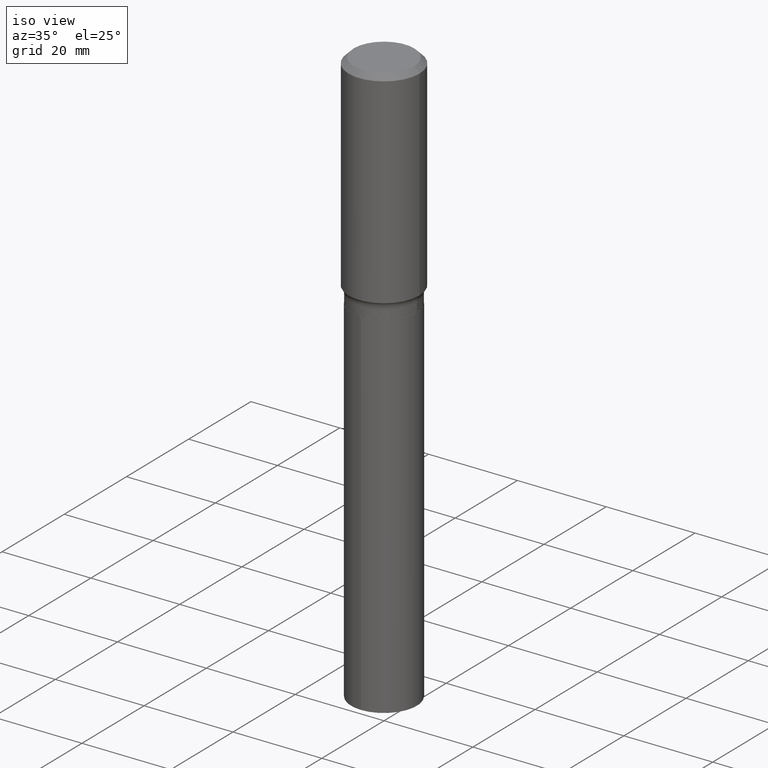
[diagram: clean part render]
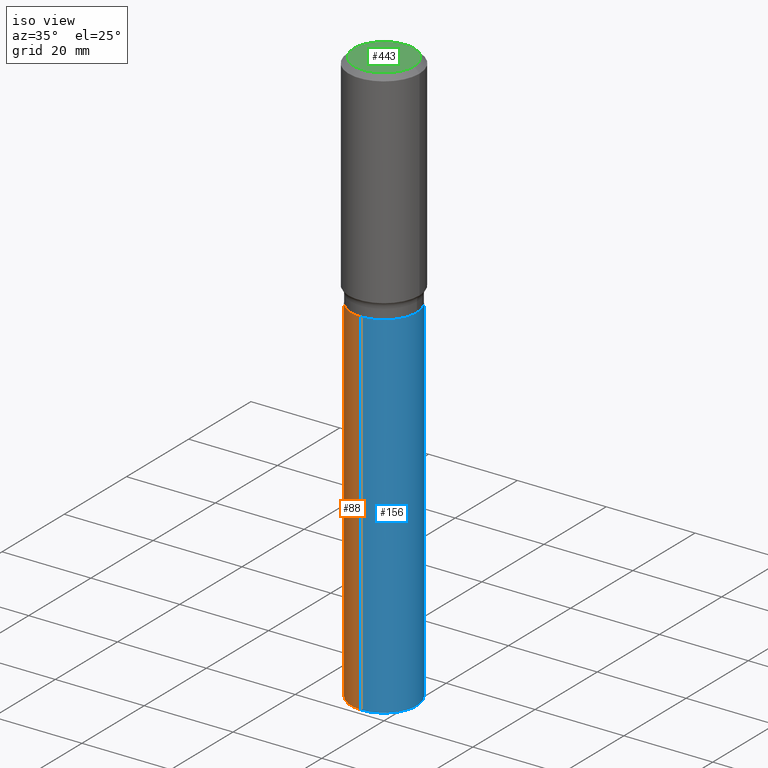
[diagram: same view with three faces highlighted in distinct colors, each labeled with its STEP entity id]
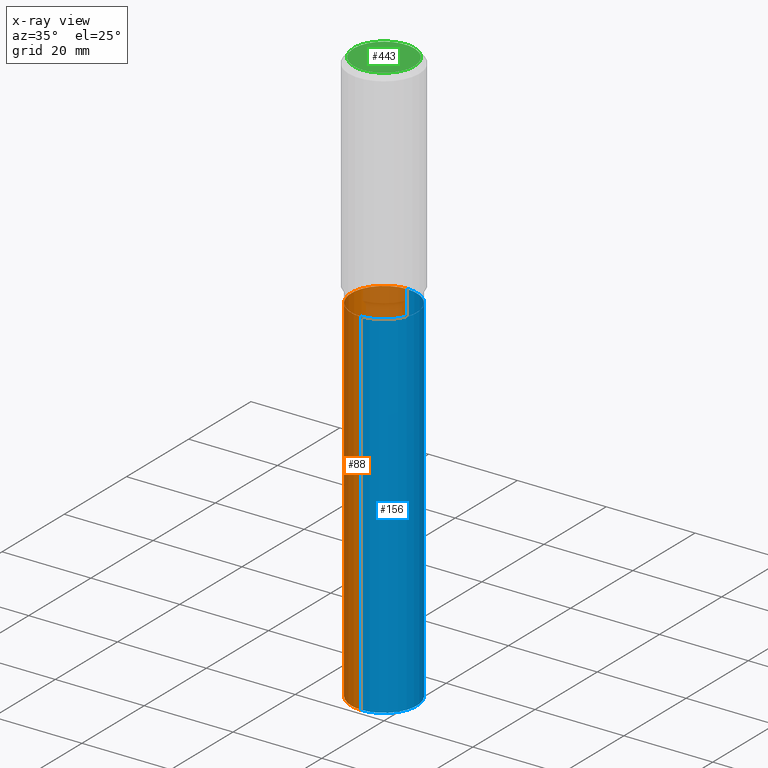
[diagram: x-ray of the same camera — body ghosted, the three highlighted faces saturated]
A machine part, iso view with three faces highlighted in distinct colors.
The next image is the same camera in x-ray (body ghosted, the three faces saturated) — at least one of them is partly hidden behind the body in this view.
Their STEP definitions:

[orange] entity #88 — the highlighted cylindrical surface (partial cylindrical patch) has radius 7.4003 mm, axis along (-0, 0, 1).
#3 = CYLINDRICAL_SURFACE ( 'NONE', #227, 0.2913499999999999979 ) ;
#7 = CARTESIAN_POINT ( 'NONE',  ( 4.813416251214202584E-29, -6.872282719244960739E-15, -1.968299999999999272 ) ) ;
#10 = CARTESIAN_POINT ( 'NONE',  ( 2.070166260637176911E-15, 0.2913499999999821788, -5.118286959102927192 ) ) ;
#22 = DIRECTION ( 'NONE',  ( -6.982962677686267499E-15, -1.000000000000000000, 3.750606478344620614E-15 ) ) ;
#29 = CARTESIAN_POINT ( 'NONE',  ( -2.034486176143845503E-15, -0.2913500000000068257, -1.968299999999998162 ) ) ;
#44 = ORIENTED_EDGE ( 'NONE', *, *, #414, .F. ) ;
#46 = LINE ( 'NONE', #196, #91 ) ;
#60 = AXIS2_PLACEMENT_3D ( 'NONE', #99, #256, #418 ) ;
#84 = DIRECTION ( 'NONE',  ( -2.445337039043801904E-29, 3.491670036889256580E-15, 1.000000000000000000 ) ) ;
#88 = ADVANCED_FACE ( 'NONE', ( #101 ), #3, .T. ) ;
#91 = VECTOR ( 'NONE', #84, 39.37007874015748143 ) ;
#99 = CARTESIAN_POINT ( 'NONE',  ( 1.251619603481354331E-28, -1.787099780093655528E-14, -5.118286959102926303 ) ) ;
#101 = FACE_OUTER_BOUND ( 'NONE', #277, .T. ) ;
#124 = DIRECTION ( 'NONE',  ( -2.445337039043801904E-29, 3.491670036889256580E-15, 1.000000000000000000 ) ) ;
#129 = CIRCLE ( 'NONE', #323, 0.2913499999999999979 ) ;
#155 = LINE ( 'NONE', #432, #411 ) ;
#163 = VERTEX_POINT ( 'NONE', #29 ) ;
#180 = CARTESIAN_POINT ( 'NONE',  ( 4.813416251214202584E-29, -6.872282719244960739E-15, -1.968299999999999272 ) ) ;
#196 = CARTESIAN_POINT ( 'NONE',  ( -2.034486176143845897E-15, -0.2913500000000068813, -1.968299999999998162 ) ) ;
#208 = EDGE_CURVE ( 'NONE', #209, #163, #46, .T. ) ;
#209 = VERTEX_POINT ( 'NONE', #435 ) ;
#227 = AXIS2_PLACEMENT_3D ( 'NONE', #180, #489, #22 ) ;
#242 = ORIENTED_EDGE ( 'NONE', *, *, #208, .T. ) ;
#256 = DIRECTION ( 'NONE',  ( -2.445337039043801904E-29, 3.491670036889256580E-15, 1.000000000000000000 ) ) ;
#272 = CIRCLE ( 'NONE', #60, 0.2913499999999999979 ) ;
#273 = ORIENTED_EDGE ( 'NONE', *, *, #421, .F. ) ;
#277 = EDGE_LOOP ( 'NONE', ( #44, #441, #242, #273 ) ) ;
#309 = DIRECTION ( 'NONE',  ( -6.982962677686265922E-15, -1.000000000000000000, 3.750606478344620614E-15 ) ) ;
#323 = AXIS2_PLACEMENT_3D ( 'NONE', #7, #470, #309 ) ;
#332 = CARTESIAN_POINT ( 'NONE',  ( 2.070166260637176911E-15, 0.2913499999999931145, -1.968300000000000383 ) ) ;
#342 = VERTEX_POINT ( 'NONE', #332 ) ;
#355 = EDGE_CURVE ( 'NONE', #446, #209, #272, .T. ) ;
#411 = VECTOR ( 'NONE', #124, 39.37007874015748143 ) ;
#414 = EDGE_CURVE ( 'NONE', #446, #342, #155, .T. ) ;
#418 = DIRECTION ( 'NONE',  ( -6.982962677686267499E-15, -1.000000000000000000, 3.750606478344620614E-15 ) ) ;
#421 = EDGE_CURVE ( 'NONE', #342, #163, #129, .T. ) ;
#432 = CARTESIAN_POINT ( 'NONE',  ( 2.070166260637099997E-15, 0.2913499999999931700, -1.968300000000000383 ) ) ;
#435 = CARTESIAN_POINT ( 'NONE',  ( -2.034486176143768589E-15, -0.2913500000000178725, -5.118286959102924527 ) ) ;
#441 = ORIENTED_EDGE ( 'NONE', *, *, #355, .T. ) ;
#446 = VERTEX_POINT ( 'NONE', #10 ) ;
#470 = DIRECTION ( 'NONE',  ( -2.445337039043801904E-29, 3.491670036889256580E-15, 1.000000000000000000 ) ) ;
#489 = DIRECTION ( 'NONE',  ( -2.445337039043801904E-29, 3.491670036889256580E-15, 1.000000000000000000 ) ) ;

[blue] entity #156 — the highlighted cylindrical surface (partial cylindrical patch) has radius 7.4003 mm, axis along (-0, 0, 1).
#10 = CARTESIAN_POINT ( 'NONE',  ( 2.070166260637176911E-15, 0.2913499999999821788, -5.118286959102927192 ) ) ;
#29 = CARTESIAN_POINT ( 'NONE',  ( -2.034486176143845503E-15, -0.2913500000000068257, -1.968299999999998162 ) ) ;
#46 = LINE ( 'NONE', #196, #91 ) ;
#49 = AXIS2_PLACEMENT_3D ( 'NONE', #251, #386, #137 ) ;
#84 = DIRECTION ( 'NONE',  ( -2.445337039043801904E-29, 3.491670036889256580E-15, 1.000000000000000000 ) ) ;
#90 = AXIS2_PLACEMENT_3D ( 'NONE', #379, #338, #295 ) ;
#91 = VECTOR ( 'NONE', #84, 39.37007874015748143 ) ;
#94 = EDGE_LOOP ( 'NONE', ( #396, #407, #416, #370 ) ) ;
#106 = EDGE_CURVE ( 'NONE', #209, #446, #462, .T. ) ;
#124 = DIRECTION ( 'NONE',  ( -2.445337039043801904E-29, 3.491670036889256580E-15, 1.000000000000000000 ) ) ;
#137 = DIRECTION ( 'NONE',  ( -6.982962677686267499E-15, -1.000000000000000000, 3.750606478344620614E-15 ) ) ;
#155 = LINE ( 'NONE', #432, #411 ) ;
#156 = ADVANCED_FACE ( 'NONE', ( #383 ), #486, .T. ) ;
#161 = CARTESIAN_POINT ( 'NONE',  ( 4.813416251214202584E-29, -6.872282719244960739E-15, -1.968299999999999272 ) ) ;
#163 = VERTEX_POINT ( 'NONE', #29 ) ;
#185 = DIRECTION ( 'NONE',  ( -2.445337039043801904E-29, 3.491670036889256580E-15, 1.000000000000000000 ) ) ;
#196 = CARTESIAN_POINT ( 'NONE',  ( -2.034486176143845897E-15, -0.2913500000000068813, -1.968299999999998162 ) ) ;
#208 = EDGE_CURVE ( 'NONE', #209, #163, #46, .T. ) ;
#209 = VERTEX_POINT ( 'NONE', #435 ) ;
#248 = AXIS2_PLACEMENT_3D ( 'NONE', #161, #185, #461 ) ;
#251 = CARTESIAN_POINT ( 'NONE',  ( 1.251619603481354331E-28, -1.787099780093655528E-14, -5.118286959102926303 ) ) ;
#295 = DIRECTION ( 'NONE',  ( -6.982962677686267499E-15, -1.000000000000000000, 3.750606478344620614E-15 ) ) ;
#332 = CARTESIAN_POINT ( 'NONE',  ( 2.070166260637176911E-15, 0.2913499999999931145, -1.968300000000000383 ) ) ;
#338 = DIRECTION ( 'NONE',  ( -2.445337039043801904E-29, 3.491670036889256580E-15, 1.000000000000000000 ) ) ;
#342 = VERTEX_POINT ( 'NONE', #332 ) ;
#370 = ORIENTED_EDGE ( 'NONE', *, *, #208, .F. ) ;
#379 = CARTESIAN_POINT ( 'NONE',  ( 4.813416251214202584E-29, -6.872282719244960739E-15, -1.968299999999999272 ) ) ;
#383 = FACE_OUTER_BOUND ( 'NONE', #94, .T. ) ;
#386 = DIRECTION ( 'NONE',  ( -2.445337039043801904E-29, 3.491670036889256580E-15, 1.000000000000000000 ) ) ;
#396 = ORIENTED_EDGE ( 'NONE', *, *, #106, .T. ) ;
#407 = ORIENTED_EDGE ( 'NONE', *, *, #414, .T. ) ;
#411 = VECTOR ( 'NONE', #124, 39.37007874015748143 ) ;
#414 = EDGE_CURVE ( 'NONE', #446, #342, #155, .T. ) ;
#416 = ORIENTED_EDGE ( 'NONE', *, *, #452, .F. ) ;
#432 = CARTESIAN_POINT ( 'NONE',  ( 2.070166260637099997E-15, 0.2913499999999931700, -1.968300000000000383 ) ) ;
#433 = CIRCLE ( 'NONE', #248, 0.2913499999999999979 ) ;
#435 = CARTESIAN_POINT ( 'NONE',  ( -2.034486176143768589E-15, -0.2913500000000178725, -5.118286959102924527 ) ) ;
#446 = VERTEX_POINT ( 'NONE', #10 ) ;
#452 = EDGE_CURVE ( 'NONE', #163, #342, #433, .T. ) ;
#461 = DIRECTION ( 'NONE',  ( -6.982962677686265922E-15, -1.000000000000000000, 3.750606478344620614E-15 ) ) ;
#462 = CIRCLE ( 'NONE', #49, 0.2913499999999999979 ) ;
#486 = CYLINDRICAL_SURFACE ( 'NONE', #90, 0.2913499999999999979 ) ;

[green] entity #443 — the highlighted planar face has unit normal (0, -0, -1).
#11 = AXIS2_PLACEMENT_3D ( 'NONE', #36, #184, #350 ) ;
#36 = CARTESIAN_POINT ( 'NONE',  ( -1.001697619218022568E-46, 1.430158722866391086E-32, 4.096137381448112218E-18 ) ) ;
#39 = AXIS2_PLACEMENT_3D ( 'NONE', #45, #195, #363 ) ;
#43 = FACE_OUTER_BOUND ( 'NONE', #158, .T. ) ;
#45 = CARTESIAN_POINT ( 'NONE',  ( -5.008488096090112840E-47, 7.150793614331955432E-33, 2.048068690724056109E-18 ) ) ;
#69 = DIRECTION ( 'NONE',  ( 1.000000000000000000, -6.982962677686267499E-15, 4.876236838442819371E-29 ) ) ;
#105 = CARTESIAN_POINT ( 'NONE',  ( -1.001697619218022568E-46, 1.430158722866391086E-32, 4.096137381448112218E-18 ) ) ;
#158 = EDGE_LOOP ( 'NONE', ( #378, #246 ) ) ;
#164 = VERTEX_POINT ( 'NONE', #456 ) ;
#173 = EDGE_CURVE ( 'NONE', #327, #164, #322, .T. ) ;
#175 = CIRCLE ( 'NONE', #11, 0.2677074999999999871 ) ;
#184 = DIRECTION ( 'NONE',  ( -2.445468806185136597E-29, 3.491481338843145583E-15, 1.000000000000000000 ) ) ;
#195 = DIRECTION ( 'NONE',  ( 2.438088387897960049E-29, -3.491481338843145188E-15, -1.000000000000000000 ) ) ;
#246 = ORIENTED_EDGE ( 'NONE', *, *, #325, .T. ) ;
#304 = AXIS2_PLACEMENT_3D ( 'NONE', #105, #425, #69 ) ;
#310 = PLANE ( 'NONE',  #39 ) ;
#322 = CIRCLE ( 'NONE', #304, 0.2677074999999999871 ) ;
#325 = EDGE_CURVE ( 'NONE', #164, #327, #175, .T. ) ;
#327 = VERTEX_POINT ( 'NONE', #340 ) ;
#340 = CARTESIAN_POINT ( 'NONE',  ( -0.2677074999999999871, 1.951864634611843833E-15, 4.096137381434750116E-18 ) ) ;
#350 = DIRECTION ( 'NONE',  ( 1.000000000000000000, -6.982962677686267499E-15, 4.876236838442819371E-29 ) ) ;
#363 = DIRECTION ( 'NONE',  ( -1.000000000000000000, 6.982962677686265922E-15, -4.876176775795935793E-29 ) ) ;
#378 = ORIENTED_EDGE ( 'NONE', *, *, #173, .T. ) ;
#425 = DIRECTION ( 'NONE',  ( -2.445468806185136597E-29, 3.491481338843145583E-15, 1.000000000000000000 ) ) ;
#443 = ADVANCED_FACE ( 'NONE', ( #43 ), #310, .F. ) ;
#456 = CARTESIAN_POINT ( 'NONE',  ( 0.2677074999999999871, -2.081133459643432233E-15, 4.096137381461924987E-18 ) ) ;